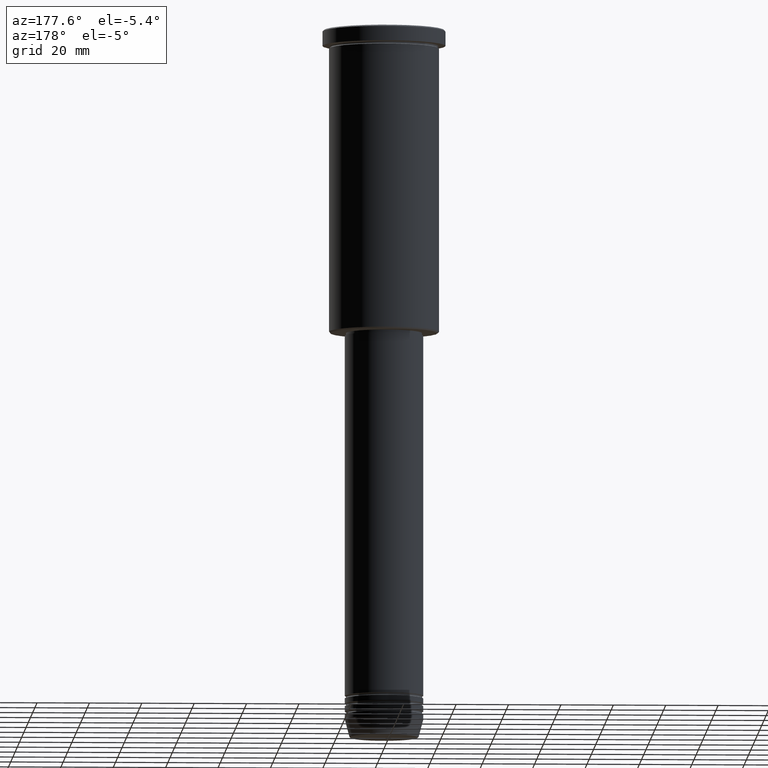
[diagram: clean part render]
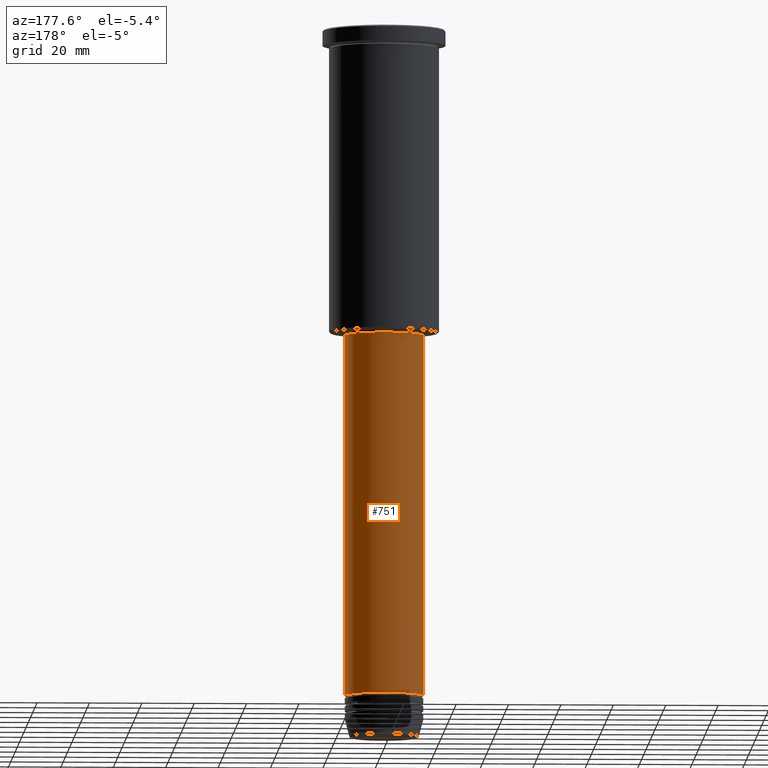
[diagram: same view with one face highlighted and labeled with its STEP entity id]
A machine part, auxiliary view. The second image highlights one B-rep face of the part: STEP entity #751.
In plain terms, the highlighted cylindrical surface (partial cylindrical patch) has radius 15 mm, axis along (-0, -0, 1).
Its self-contained STEP definition (entity closure, byte-faithful):
#14 = VECTOR ( 'NONE', #472, 1000.000000000000000 ) ;
#35 = CARTESIAN_POINT ( 'NONE',  ( -15.00000000000000000, 1.836970198721029589E-15, -255.0000000000000000 ) ) ;
#38 = EDGE_CURVE ( 'NONE', #1061, #697, #879, .T. ) ;
#41 = CYLINDRICAL_SURFACE ( 'NONE', #709, 15.00000000000000000 ) ;
#63 = CARTESIAN_POINT ( 'NONE',  ( 15.00000000000000000, 0.000000000000000000, -255.0000000000000000 ) ) ;
#96 = FACE_OUTER_BOUND ( 'NONE', #1023, .T. ) ;
#124 = DIRECTION ( 'NONE',  ( -0.000000000000000000, -0.000000000000000000, 1.000000000000000000 ) ) ;
#142 = ORIENTED_EDGE ( 'NONE', *, *, #804, .F. ) ;
#145 = VERTEX_POINT ( 'NONE', #1083 ) ;
#206 = CARTESIAN_POINT ( 'NONE',  ( -15.00000000000000000, 1.836970198721029589E-15, 0.000000000000000000 ) ) ;
#207 = CIRCLE ( 'NONE', #899, 15.00000000000000000 ) ;
#288 = DIRECTION ( 'NONE',  ( -0.000000000000000000, -0.000000000000000000, 1.000000000000000000 ) ) ;
#305 = ORIENTED_EDGE ( 'NONE', *, *, #342, .T. ) ;
#308 = DIRECTION ( 'NONE',  ( -0.000000000000000000, -0.000000000000000000, 1.000000000000000000 ) ) ;
#316 = CARTESIAN_POINT ( 'NONE',  ( 15.00000000000000000, 0.000000000000000000, 0.000000000000000000 ) ) ;
#330 = DIRECTION ( 'NONE',  ( -0.000000000000000000, -0.000000000000000000, 1.000000000000000000 ) ) ;
#334 = DIRECTION ( 'NONE',  ( 1.000000000000000000, 0.000000000000000000, 0.000000000000000000 ) ) ;
#342 = EDGE_CURVE ( 'NONE', #1061, #619, #207, .T. ) ;
#392 = AXIS2_PLACEMENT_3D ( 'NONE', #935, #124, #334 ) ;
#398 = CARTESIAN_POINT ( 'NONE',  ( 0.000000000000000000, 0.000000000000000000, 0.000000000000000000 ) ) ;
#452 = CIRCLE ( 'NONE', #392, 15.00000000000000000 ) ;
#472 = DIRECTION ( 'NONE',  ( -0.000000000000000000, -0.000000000000000000, 1.000000000000000000 ) ) ;
#552 = LINE ( 'NONE', #206, #14 ) ;
#619 = VERTEX_POINT ( 'NONE', #35 ) ;
#697 = VERTEX_POINT ( 'NONE', #800 ) ;
#709 = AXIS2_PLACEMENT_3D ( 'NONE', #398, #308, #1127 ) ;
#751 = ADVANCED_FACE ( 'NONE', ( #96 ), #41, .T. ) ;
#800 = CARTESIAN_POINT ( 'NONE',  ( 15.00000000000000000, 0.000000000000000000, -117.0000000000000000 ) ) ;
#804 = EDGE_CURVE ( 'NONE', #697, #145, #452, .T. ) ;
#820 = DIRECTION ( 'NONE',  ( 1.000000000000000000, 0.000000000000000000, 0.000000000000000000 ) ) ;
#868 = ORIENTED_EDGE ( 'NONE', *, *, #38, .F. ) ;
#879 = LINE ( 'NONE', #316, #1055 ) ;
#899 = AXIS2_PLACEMENT_3D ( 'NONE', #920, #288, #820 ) ;
#920 = CARTESIAN_POINT ( 'NONE',  ( 0.000000000000000000, 0.000000000000000000, -255.0000000000000000 ) ) ;
#935 = CARTESIAN_POINT ( 'NONE',  ( 0.000000000000000000, 0.000000000000000000, -117.0000000000000000 ) ) ;
#974 = ORIENTED_EDGE ( 'NONE', *, *, #1130, .T. ) ;
#1023 = EDGE_LOOP ( 'NONE', ( #305, #974, #142, #868 ) ) ;
#1055 = VECTOR ( 'NONE', #330, 1000.000000000000000 ) ;
#1061 = VERTEX_POINT ( 'NONE', #63 ) ;
#1083 = CARTESIAN_POINT ( 'NONE',  ( -15.00000000000000000, 1.836970198721029589E-15, -117.0000000000000000 ) ) ;
#1127 = DIRECTION ( 'NONE',  ( 1.000000000000000000, 0.000000000000000000, 0.000000000000000000 ) ) ;
#1130 = EDGE_CURVE ( 'NONE', #619, #145, #552, .T. ) ;